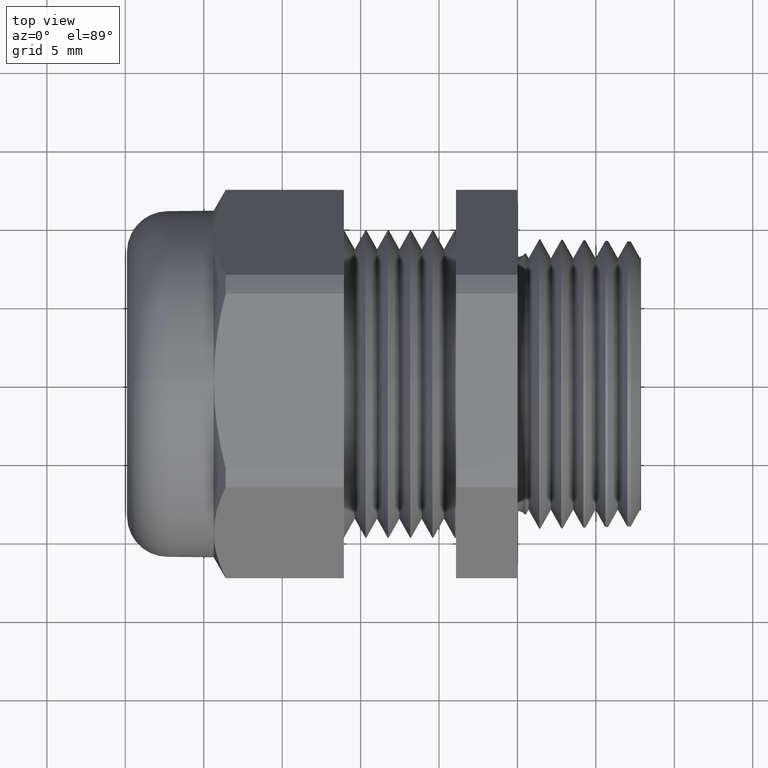
[diagram: clean part render]
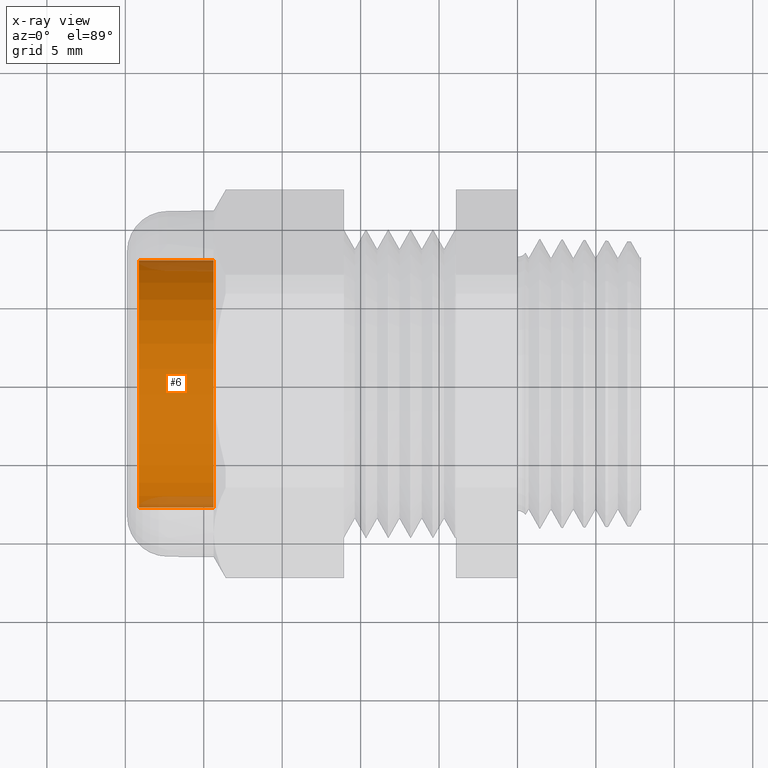
[diagram: x-ray — body ghosted, one internal face saturated and labeled with its STEP entity id]
A machine part, top view, then the same camera in x-ray: the body is ghosted and one INTERNAL B-rep face — a face not visible from any outside direction — is saturated and labeled: STEP entity #6.
In plain terms, the highlighted cylindrical surface (partial cylindrical patch) has radius 7.8804 mm, axis along (1, 0, 0).
Its self-contained STEP definition (entity closure, byte-faithful):
#6 = ADVANCED_FACE ( 'NONE', ( #930 ), #929, .T. ) ;
#7 = EDGE_LOOP ( 'NONE', ( #8, #42, #45, #48 ) ) ;
#8 = ORIENTED_EDGE ( 'NONE', *, *, #10, .T. ) ;
#10 = EDGE_CURVE ( 'NONE', #39, #40, #989, .T. ) ;
#29 = EDGE_CURVE ( 'NONE', #39, #47, #1018, .T. ) ;
#39 = VERTEX_POINT ( 'NONE', #991 ) ;
#40 = VERTEX_POINT ( 'NONE', #990 ) ;
#42 = ORIENTED_EDGE ( 'NONE', *, *, #43, .T. ) ;
#43 = EDGE_CURVE ( 'NONE', #40, #44, #1052, .T. ) ;
#44 = VERTEX_POINT ( 'NONE', #1048 ) ;
#45 = ORIENTED_EDGE ( 'NONE', *, *, #46, .F. ) ;
#46 = EDGE_CURVE ( 'NONE', #47, #44, #1047, .T. ) ;
#47 = VERTEX_POINT ( 'NONE', #1042 ) ;
#48 = ORIENTED_EDGE ( 'NONE', *, *, #29, .F. ) ;
#925 = DIRECTION ( 'NONE',  ( -2.201327956216166000E-016, 1.000000000000000000, 0.0000000000000000000 ) ) ;
#926 = DIRECTION ( 'NONE',  ( 1.000000000000000000, 1.214306433183765200E-016, 0.0000000000000000000 ) ) ;
#927 = CARTESIAN_POINT ( 'NONE',  ( 0.3764656411965715000, 0.0000000000000000000, 0.0000000000000000000 ) ) ;
#928 = AXIS2_PLACEMENT_3D ( 'NONE', #927, #926, #925 ) ;
#929 = CYLINDRICAL_SURFACE ( 'NONE', #928, 0.3102500000000001400 ) ;
#930 = FACE_OUTER_BOUND ( 'NONE', #7, .T. ) ;
#985 = DIRECTION ( 'NONE',  ( 0.0000000000000000000, -1.000000000000000000, 0.0000000000000000000 ) ) ;
#986 = DIRECTION ( 'NONE',  ( 1.000000000000000000, 1.214306433183765200E-016, 0.0000000000000000000 ) ) ;
#987 = CARTESIAN_POINT ( 'NONE',  ( -0.9499999999999999600, -1.610735761502225000E-016, 0.0000000000000000000 ) ) ;
#988 = AXIS2_PLACEMENT_3D ( 'NONE', #987, #986, #985 ) ;
#989 = CIRCLE ( 'NONE', #988, 0.3102500000000001400 ) ;
#990 = CARTESIAN_POINT ( 'NONE',  ( -0.9499999999999999600, -0.3102500000000002500, 3.799466694354665100E-017 ) ) ;
#991 = CARTESIAN_POINT ( 'NONE',  ( -0.9499999999999999600, 0.3102499999999999700, 0.0000000000000000000 ) ) ;
#1010 = DIRECTION ( 'NONE',  ( 1.000000000000000000, 1.214306433183765200E-016, 0.0000000000000000000 ) ) ;
#1011 = VECTOR ( 'NONE', #1010, 39.37007874015748100 ) ;
#1012 = CARTESIAN_POINT ( 'NONE',  ( 0.3764656411965714400, 0.3102500000000001400, 0.0000000000000000000 ) ) ;
#1018 = LINE ( 'NONE', #1012, #1011 ) ;
#1042 = CARTESIAN_POINT ( 'NONE',  ( -0.7624999999999999600, 0.3102499999999999700, 0.0000000000000000000 ) ) ;
#1043 = DIRECTION ( 'NONE',  ( 0.0000000000000000000, 1.000000000000000000, 0.0000000000000000000 ) ) ;
#1044 = DIRECTION ( 'NONE',  ( 1.000000000000000000, 1.214306433183765200E-016, 0.0000000000000000000 ) ) ;
#1045 = CARTESIAN_POINT ( 'NONE',  ( -0.7624999999999999600, -1.383053305280268800E-016, 0.0000000000000000000 ) ) ;
#1046 = AXIS2_PLACEMENT_3D ( 'NONE', #1045, #1044, #1043 ) ;
#1047 = CIRCLE ( 'NONE', #1046, 0.3102500000000001400 ) ;
#1048 = CARTESIAN_POINT ( 'NONE',  ( -0.7624999999999999600, -0.3102500000000002500, 3.799466694354665100E-017 ) ) ;
#1049 = DIRECTION ( 'NONE',  ( 1.000000000000000000, 1.214306433183765200E-016, 0.0000000000000000000 ) ) ;
#1050 = VECTOR ( 'NONE', #1049, 39.37007874015748100 ) ;
#1051 = CARTESIAN_POINT ( 'NONE',  ( 0.3764656411965715500, -0.3102500000000001400, 3.799466694354665100E-017 ) ) ;
#1052 = LINE ( 'NONE', #1051, #1050 ) ;